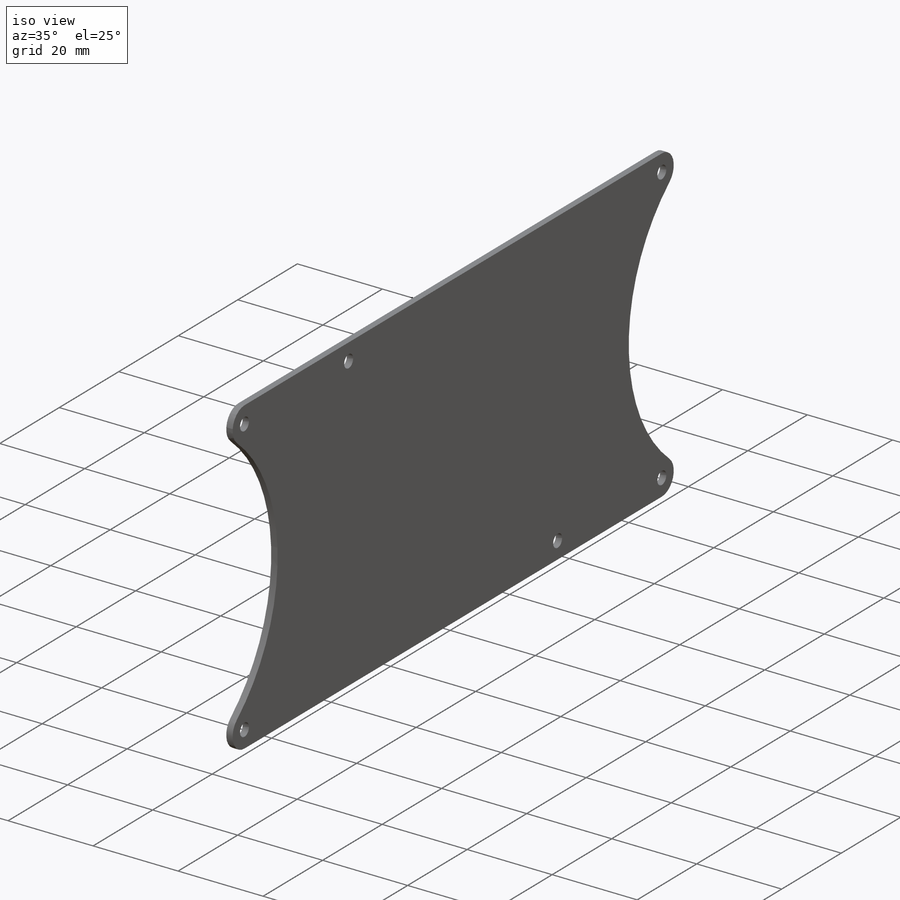
[diagram: iso view]
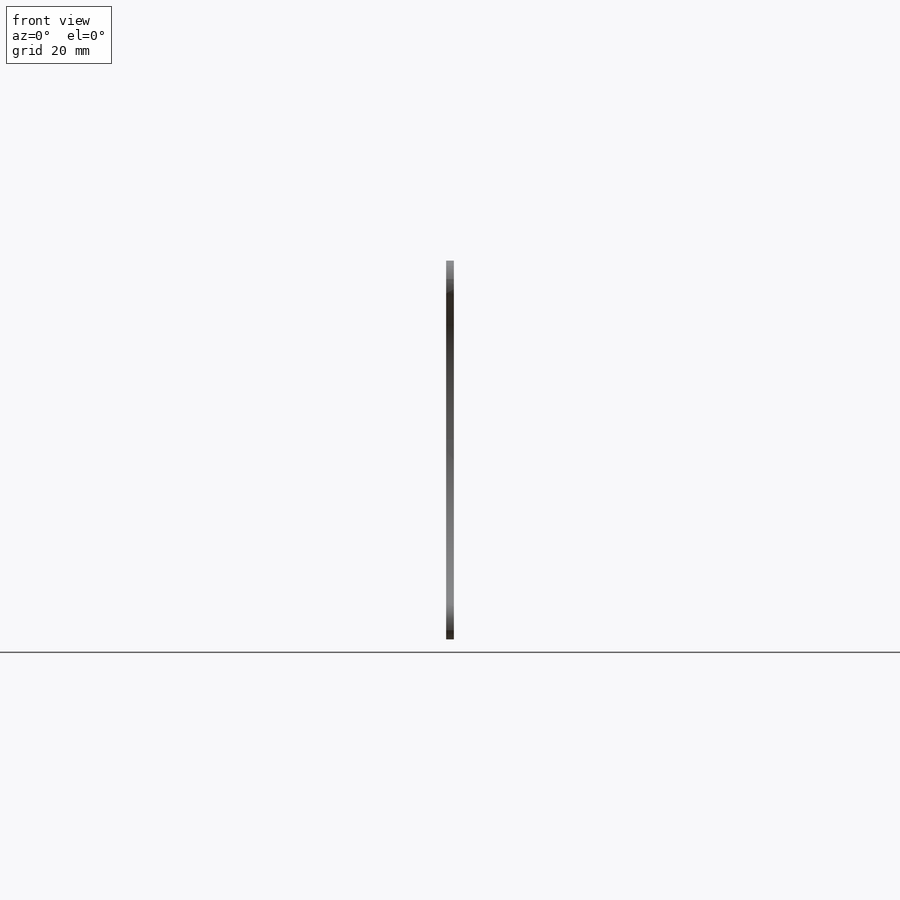
[diagram: front view]
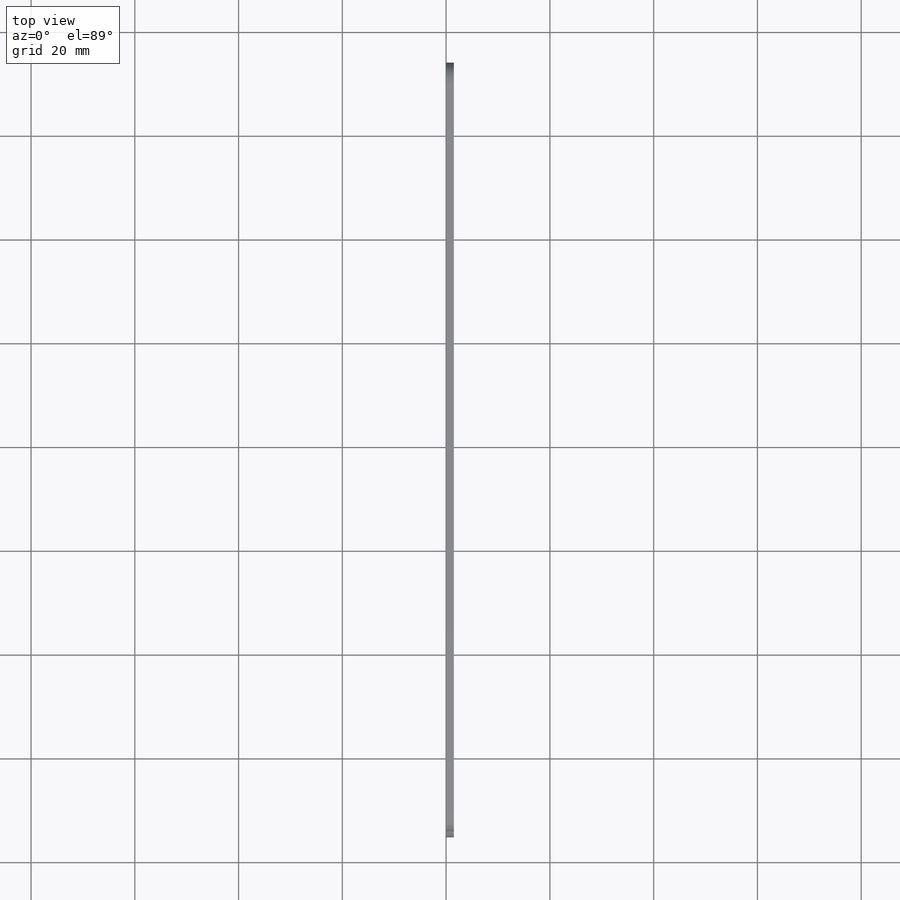
[diagram: top view]
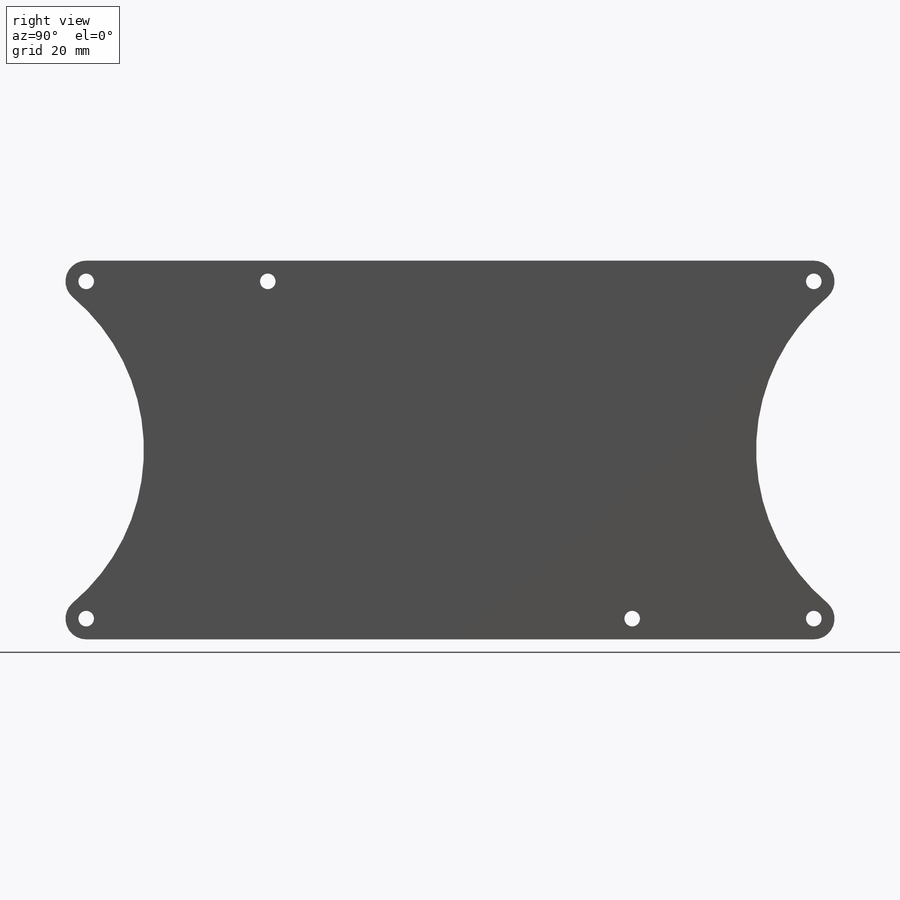
[diagram: right view]
SOLIDWORKS PART (.sldprt)
format: sldprt  version: not decoded by parser v0  size: 280,064 bytes
history: native  units: mm
features: sketch x3, material x1, extrude x1, fillet x1, hole x1 (+12 scaffold rows collapsed)
feature tree (19):
  scaffold x12  (default folders/planes/origin — collapsed)
  material  "Hexcel AS4C (3000 Filaments)"
  sketch  "Sketch1"  dims[D1=75.0mm D2=75.0mm D3=195.0mm D4=1.0mm D5=1.0mm]
  extrude  "Boss-Extrude1"  Depth=1.5mm
  fillet  "Fillet1"  Radius=4mm
  hole  "Ø3.0mm Dowel Hole2"  Diameter=3mm Depth=17.29mm
  sketch  "Sketch7"  dims[c1.D1=35.0mm c1.D2=35.0mm c2.D1=35.0mm c2.D2=35.0mm]
  sketch  "Sketch6"  dims[hole-wizard template sketch: 50 standard entries collapsed; hole parameters above]
decode coverage: 6 of 6 modeling features carry decoded parameters
note: ~ marks probable driven/reference dimensions
note: suppression state not decoded; provenance and decode notes live in map.json
